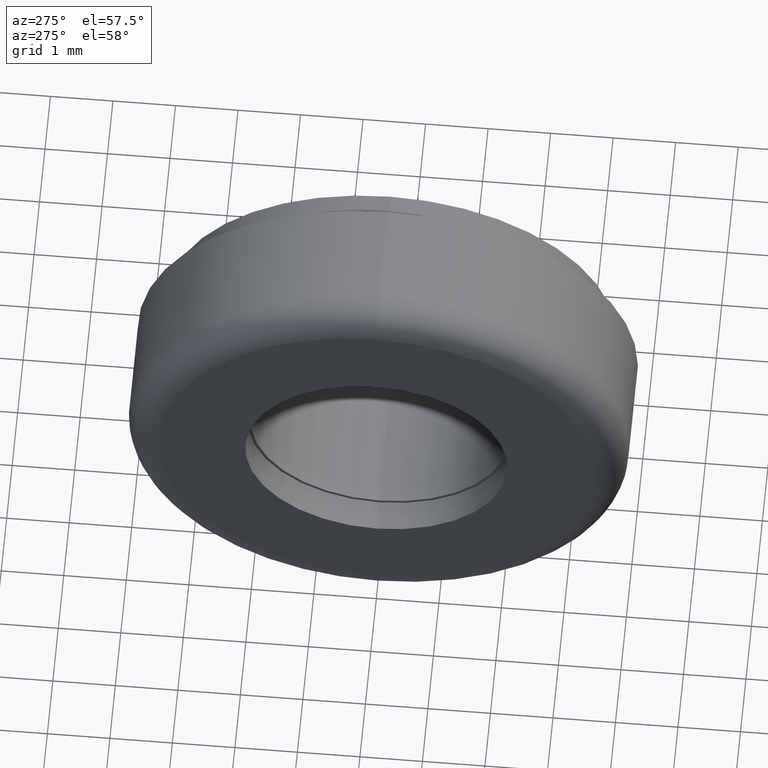
[diagram: clean part render]
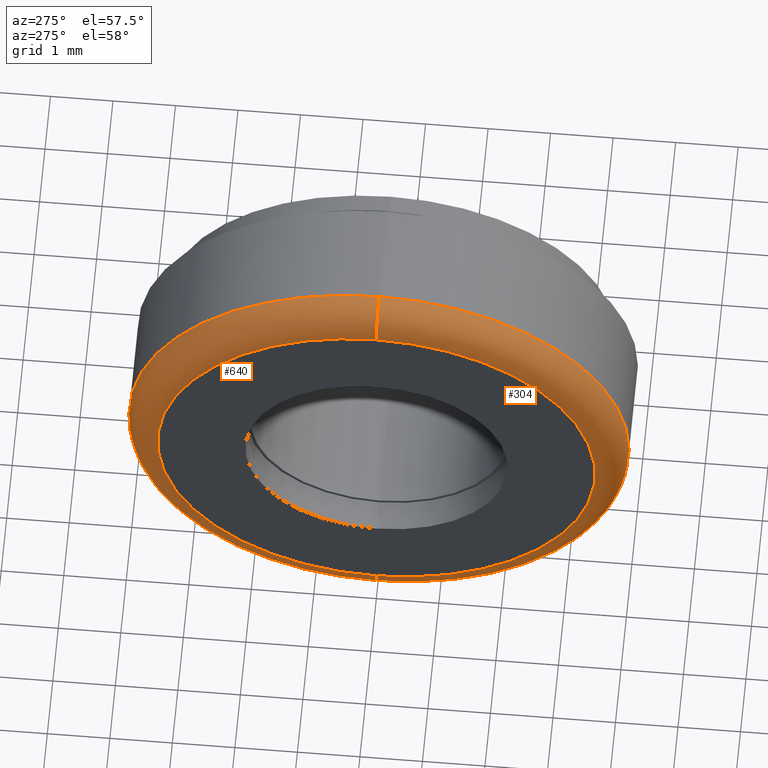
[diagram: same view with one multi-face feature highlighted, each face labeled with its STEP entity id]
A machine part, auxiliary view. The highlighted faces form ONE feature: a constant-radius fillet chain: 2 tangent blend faces with common blend radius 0.5 mm. The faces share edges in the B-rep.
Their STEP definitions:
[1] entity #304 (Torus):
#12 = DIRECTION ( 'NONE',  ( 0.0000000000000000000, 1.224646799147352500E-016, 1.000000000000000000 ) ) ;
#23 = CIRCLE ( 'NONE', #714, 0.5000000000000000000 ) ;
#33 = EDGE_CURVE ( 'NONE', #379, #279, #23, .T. ) ;
#46 = AXIS2_PLACEMENT_3D ( 'NONE', #633, #510, #732 ) ;
#75 = ORIENTED_EDGE ( 'NONE', *, *, #519, .F. ) ;
#80 = DIRECTION ( 'NONE',  ( -1.000000000000000000, -0.0000000000000000000, -0.0000000000000000000 ) ) ;
#97 = ORIENTED_EDGE ( 'NONE', *, *, #33, .F. ) ;
#108 = FACE_OUTER_BOUND ( 'NONE', #670, .T. ) ;
#109 = ORIENTED_EDGE ( 'NONE', *, *, #194, .F. ) ;
#128 = CARTESIAN_POINT ( 'NONE',  ( 0.0000000000000000000, 0.0000000000000000000, 0.0000000000000000000 ) ) ;
#129 = DIRECTION ( 'NONE',  ( 0.0000000000000000000, 0.0000000000000000000, -1.000000000000000000 ) ) ;
#160 = DIRECTION ( 'NONE',  ( 0.0000000000000000000, 1.000000000000000000, -1.224646799147353200E-016 ) ) ;
#194 = EDGE_CURVE ( 'NONE', #500, #379, #687, .T. ) ;
#212 = CARTESIAN_POINT ( 'NONE',  ( 0.5000000000000000000, 4.286263797015736600E-016, 3.500000000000000000 ) ) ;
#275 = DIRECTION ( 'NONE',  ( 0.0000000000000000000, -1.000000000000000000, 0.0000000000000000000 ) ) ;
#279 = VERTEX_POINT ( 'NONE', #480 ) ;
#282 = DIRECTION ( 'NONE',  ( 0.0000000000000000000, 0.0000000000000000000, -1.000000000000000000 ) ) ;
#304 = ADVANCED_FACE ( 'NONE', ( #108 ), #663, .T. ) ;
#325 = CARTESIAN_POINT ( 'NONE',  ( 0.5000000000000000000, 0.0000000000000000000, -3.500000000000000000 ) ) ;
#326 = ORIENTED_EDGE ( 'NONE', *, *, #423, .T. ) ;
#369 = CIRCLE ( 'NONE', #677, 0.5000000000000000000 ) ;
#379 = VERTEX_POINT ( 'NONE', #555 ) ;
#418 = VERTEX_POINT ( 'NONE', #502 ) ;
#423 = EDGE_CURVE ( 'NONE', #500, #418, #369, .T. ) ;
#436 = AXIS2_PLACEMENT_3D ( 'NONE', #721, #659, #129 ) ;
#473 = CIRCLE ( 'NONE', #436, 4.000000000000000000 ) ;
#480 = CARTESIAN_POINT ( 'NONE',  ( 0.5000000000000000000, 0.0000000000000000000, 4.000000000000000000 ) ) ;
#500 = VERTEX_POINT ( 'NONE', #602 ) ;
#502 = CARTESIAN_POINT ( 'NONE',  ( 0.5000000000000000000, 4.898587196589412800E-016, -4.000000000000000000 ) ) ;
#510 = DIRECTION ( 'NONE',  ( 1.000000000000000000, 0.0000000000000000000, 0.0000000000000000000 ) ) ;
#519 = EDGE_CURVE ( 'NONE', #279, #418, #473, .T. ) ;
#555 = CARTESIAN_POINT ( 'NONE',  ( 0.0000000000000000000, 4.592425496802574000E-016, 3.500000000000000000 ) ) ;
#581 = AXIS2_PLACEMENT_3D ( 'NONE', #128, #80, #667 ) ;
#602 = CARTESIAN_POINT ( 'NONE',  ( 0.0000000000000000000, 0.0000000000000000000, -3.500000000000000000 ) ) ;
#633 = CARTESIAN_POINT ( 'NONE',  ( 0.5000000000000000000, 0.0000000000000000000, 0.0000000000000000000 ) ) ;
#659 = DIRECTION ( 'NONE',  ( 1.000000000000000000, 0.0000000000000000000, 0.0000000000000000000 ) ) ;
#663 = TOROIDAL_SURFACE ( 'NONE', #46, 3.500000000000000000, 0.5000000000000000000 ) ;
#667 = DIRECTION ( 'NONE',  ( 0.0000000000000000000, 0.0000000000000000000, -1.000000000000000000 ) ) ;
#670 = EDGE_LOOP ( 'NONE', ( #97, #109, #326, #75 ) ) ;
#677 = AXIS2_PLACEMENT_3D ( 'NONE', #325, #275, #282 ) ;
#687 = CIRCLE ( 'NONE', #581, 3.500000000000000000 ) ;
#714 = AXIS2_PLACEMENT_3D ( 'NONE', #212, #160, #12 ) ;
#721 = CARTESIAN_POINT ( 'NONE',  ( 0.5000000000000000000, 0.0000000000000000000, 0.0000000000000000000 ) ) ;
#732 = DIRECTION ( 'NONE',  ( 0.0000000000000000000, 0.0000000000000000000, -1.000000000000000000 ) ) ;
[2] entity #640 (Torus):
#12 = DIRECTION ( 'NONE',  ( 0.0000000000000000000, 1.224646799147352500E-016, 1.000000000000000000 ) ) ;
#23 = CIRCLE ( 'NONE', #714, 0.5000000000000000000 ) ;
#33 = EDGE_CURVE ( 'NONE', #379, #279, #23, .T. ) ;
#62 = DIRECTION ( 'NONE',  ( 0.0000000000000000000, 0.0000000000000000000, -1.000000000000000000 ) ) ;
#77 = DIRECTION ( 'NONE',  ( 0.0000000000000000000, 0.0000000000000000000, -1.000000000000000000 ) ) ;
#95 = AXIS2_PLACEMENT_3D ( 'NONE', #664, #712, #386 ) ;
#130 = TOROIDAL_SURFACE ( 'NONE', #95, 3.500000000000000000, 0.5000000000000000000 ) ;
#160 = DIRECTION ( 'NONE',  ( 0.0000000000000000000, 1.000000000000000000, -1.224646799147353200E-016 ) ) ;
#177 = AXIS2_PLACEMENT_3D ( 'NONE', #403, #547, #62 ) ;
#178 = FACE_OUTER_BOUND ( 'NONE', #457, .T. ) ;
#212 = CARTESIAN_POINT ( 'NONE',  ( 0.5000000000000000000, 4.286263797015736600E-016, 3.500000000000000000 ) ) ;
#241 = CARTESIAN_POINT ( 'NONE',  ( 0.0000000000000000000, 0.0000000000000000000, 0.0000000000000000000 ) ) ;
#275 = DIRECTION ( 'NONE',  ( 0.0000000000000000000, -1.000000000000000000, 0.0000000000000000000 ) ) ;
#279 = VERTEX_POINT ( 'NONE', #480 ) ;
#282 = DIRECTION ( 'NONE',  ( 0.0000000000000000000, 0.0000000000000000000, -1.000000000000000000 ) ) ;
#284 = CIRCLE ( 'NONE', #177, 4.000000000000000000 ) ;
#321 = ORIENTED_EDGE ( 'NONE', *, *, #33, .T. ) ;
#325 = CARTESIAN_POINT ( 'NONE',  ( 0.5000000000000000000, 0.0000000000000000000, -3.500000000000000000 ) ) ;
#369 = CIRCLE ( 'NONE', #677, 0.5000000000000000000 ) ;
#379 = VERTEX_POINT ( 'NONE', #555 ) ;
#386 = DIRECTION ( 'NONE',  ( 0.0000000000000000000, 0.0000000000000000000, -1.000000000000000000 ) ) ;
#403 = CARTESIAN_POINT ( 'NONE',  ( 0.5000000000000000000, 0.0000000000000000000, 0.0000000000000000000 ) ) ;
#418 = VERTEX_POINT ( 'NONE', #502 ) ;
#423 = EDGE_CURVE ( 'NONE', #500, #418, #369, .T. ) ;
#444 = EDGE_CURVE ( 'NONE', #379, #500, #652, .T. ) ;
#457 = EDGE_LOOP ( 'NONE', ( #614, #321, #726, #528 ) ) ;
#463 = DIRECTION ( 'NONE',  ( -1.000000000000000000, -0.0000000000000000000, -0.0000000000000000000 ) ) ;
#480 = CARTESIAN_POINT ( 'NONE',  ( 0.5000000000000000000, 0.0000000000000000000, 4.000000000000000000 ) ) ;
#500 = VERTEX_POINT ( 'NONE', #602 ) ;
#502 = CARTESIAN_POINT ( 'NONE',  ( 0.5000000000000000000, 4.898587196589412800E-016, -4.000000000000000000 ) ) ;
#528 = ORIENTED_EDGE ( 'NONE', *, *, #423, .F. ) ;
#547 = DIRECTION ( 'NONE',  ( 1.000000000000000000, 0.0000000000000000000, 0.0000000000000000000 ) ) ;
#555 = CARTESIAN_POINT ( 'NONE',  ( 0.0000000000000000000, 4.592425496802574000E-016, 3.500000000000000000 ) ) ;
#597 = AXIS2_PLACEMENT_3D ( 'NONE', #241, #463, #77 ) ;
#601 = EDGE_CURVE ( 'NONE', #418, #279, #284, .T. ) ;
#602 = CARTESIAN_POINT ( 'NONE',  ( 0.0000000000000000000, 0.0000000000000000000, -3.500000000000000000 ) ) ;
#614 = ORIENTED_EDGE ( 'NONE', *, *, #444, .F. ) ;
#640 = ADVANCED_FACE ( 'NONE', ( #178 ), #130, .T. ) ;
#652 = CIRCLE ( 'NONE', #597, 3.500000000000000000 ) ;
#664 = CARTESIAN_POINT ( 'NONE',  ( 0.5000000000000000000, 0.0000000000000000000, 0.0000000000000000000 ) ) ;
#677 = AXIS2_PLACEMENT_3D ( 'NONE', #325, #275, #282 ) ;
#712 = DIRECTION ( 'NONE',  ( 1.000000000000000000, 0.0000000000000000000, 0.0000000000000000000 ) ) ;
#714 = AXIS2_PLACEMENT_3D ( 'NONE', #212, #160, #12 ) ;
#726 = ORIENTED_EDGE ( 'NONE', *, *, #601, .F. ) ;